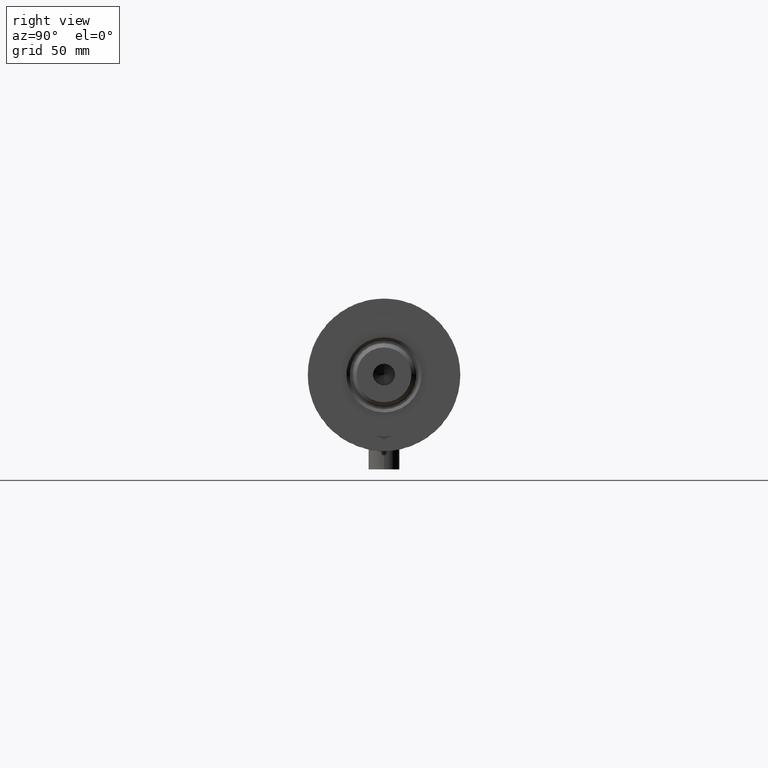
[diagram: clean part render]
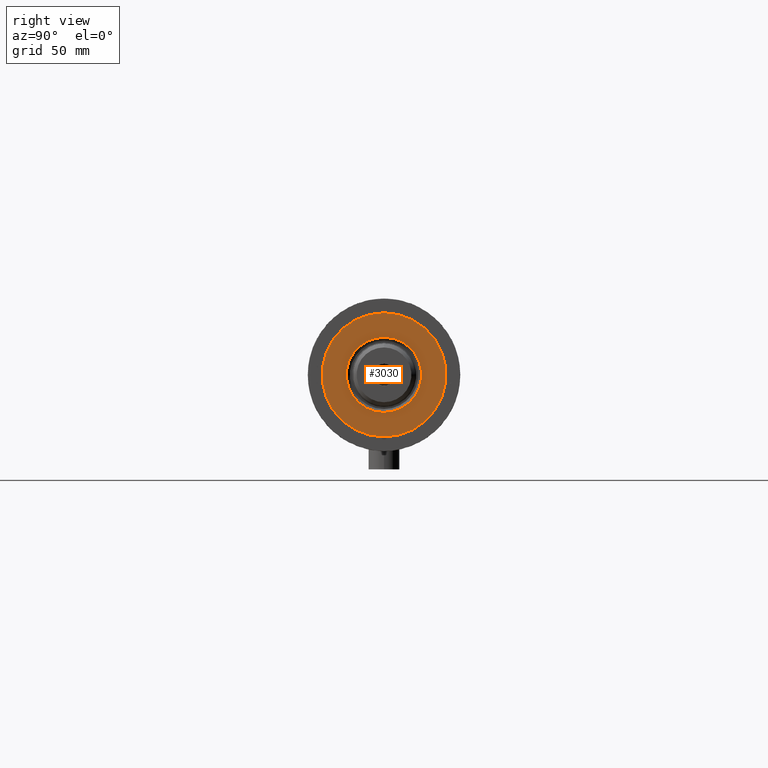
[diagram: same view with one face highlighted and labeled with its STEP entity id]
A machine part, right view. The second image highlights one B-rep face of the part: STEP entity #3030.
In plain terms, the highlighted planar face has unit normal (1, 0, -0).
Its self-contained STEP definition (entity closure, byte-faithful):
#3 = CARTESIAN_POINT ( 'NONE',  ( -14.54999999999999361, 1.781861092759398299E-15, 35.50000000000000711 ) ) ;
#170 = PLANE ( 'NONE',  #2231 ) ;
#264 = EDGE_CURVE ( 'NONE', #2024, #1299, #3377, .T. ) ;
#575 = ORIENTED_EDGE ( 'NONE', *, *, #264, .T. ) ;
#722 = EDGE_CURVE ( 'NONE', #1346, #2483, #3925, .T. ) ;
#908 = FACE_OUTER_BOUND ( 'NONE', #2212, .T. ) ;
#1057 = AXIS2_PLACEMENT_3D ( 'NONE', #2209, #1429, #2958 ) ;
#1158 = CARTESIAN_POINT ( 'NONE',  ( 0.000000000000000000, 0.000000000000000000, 35.50000000000000711 ) ) ;
#1178 = DIRECTION ( 'NONE',  ( 1.000000000000000000, 0.000000000000000000, 0.000000000000000000 ) ) ;
#1216 = CARTESIAN_POINT ( 'NONE',  ( -24.00000000000000355, 0.000000000000000000, 35.50000000000000711 ) ) ;
#1270 = CARTESIAN_POINT ( 'NONE',  ( 0.000000000000000000, 0.000000000000000000, 35.50000000000000711 ) ) ;
#1299 = VERTEX_POINT ( 'NONE', #3313 ) ;
#1343 = DIRECTION ( 'NONE',  ( 1.000000000000000000, 0.000000000000000000, -0.000000000000000000 ) ) ;
#1346 = VERTEX_POINT ( 'NONE', #3 ) ;
#1429 = DIRECTION ( 'NONE',  ( 0.000000000000000000, 0.000000000000000000, 1.000000000000000000 ) ) ;
#1624 = EDGE_CURVE ( 'NONE', #2483, #1346, #4134, .T. ) ;
#2024 = VERTEX_POINT ( 'NONE', #1216 ) ;
#2060 = ORIENTED_EDGE ( 'NONE', *, *, #4337, .T. ) ;
#2079 = CIRCLE ( 'NONE', #3321, 24.00000000000000355 ) ;
#2101 = DIRECTION ( 'NONE',  ( 1.000000000000000000, 0.000000000000000000, 0.000000000000000000 ) ) ;
#2209 = CARTESIAN_POINT ( 'NONE',  ( 0.000000000000000000, 0.000000000000000000, 35.50000000000000711 ) ) ;
#2212 = EDGE_LOOP ( 'NONE', ( #575, #2060 ) ) ;
#2231 = AXIS2_PLACEMENT_3D ( 'NONE', #2440, #3111, #1343 ) ;
#2262 = CARTESIAN_POINT ( 'NONE',  ( 14.54999999999999361, 0.000000000000000000, 35.50000000000000711 ) ) ;
#2429 = CARTESIAN_POINT ( 'NONE',  ( 0.000000000000000000, 0.000000000000000000, 35.50000000000000711 ) ) ;
#2440 = CARTESIAN_POINT ( 'NONE',  ( 0.000000000000000000, 0.000000000000000000, 35.50000000000000711 ) ) ;
#2483 = VERTEX_POINT ( 'NONE', #2262 ) ;
#2642 = DIRECTION ( 'NONE',  ( -0.000000000000000000, -0.000000000000000000, -1.000000000000000000 ) ) ;
#2958 = DIRECTION ( 'NONE',  ( 1.000000000000000000, 0.000000000000000000, 0.000000000000000000 ) ) ;
#2988 = AXIS2_PLACEMENT_3D ( 'NONE', #1158, #2642, #1178 ) ;
#3030 = ADVANCED_FACE ( 'NONE', ( #3132, #908 ), #170, .T. ) ;
#3111 = DIRECTION ( 'NONE',  ( 0.000000000000000000, 0.000000000000000000, 1.000000000000000000 ) ) ;
#3123 = DIRECTION ( 'NONE',  ( 1.000000000000000000, 0.000000000000000000, 0.000000000000000000 ) ) ;
#3132 = FACE_BOUND ( 'NONE', #4625, .T. ) ;
#3313 = CARTESIAN_POINT ( 'NONE',  ( 24.00000000000000355, 2.939152317953648289E-15, 35.50000000000000711 ) ) ;
#3321 = AXIS2_PLACEMENT_3D ( 'NONE', #2429, #3907, #3123 ) ;
#3377 = CIRCLE ( 'NONE', #1057, 24.00000000000000355 ) ;
#3400 = ORIENTED_EDGE ( 'NONE', *, *, #722, .T. ) ;
#3907 = DIRECTION ( 'NONE',  ( 0.000000000000000000, 0.000000000000000000, 1.000000000000000000 ) ) ;
#3925 = CIRCLE ( 'NONE', #2988, 14.54999999999999361 ) ;
#3996 = ORIENTED_EDGE ( 'NONE', *, *, #1624, .T. ) ;
#4058 = AXIS2_PLACEMENT_3D ( 'NONE', #1270, #4210, #2101 ) ;
#4134 = CIRCLE ( 'NONE', #4058, 14.54999999999999361 ) ;
#4210 = DIRECTION ( 'NONE',  ( -0.000000000000000000, -0.000000000000000000, -1.000000000000000000 ) ) ;
#4337 = EDGE_CURVE ( 'NONE', #1299, #2024, #2079, .T. ) ;
#4625 = EDGE_LOOP ( 'NONE', ( #3996, #3400 ) ) ;